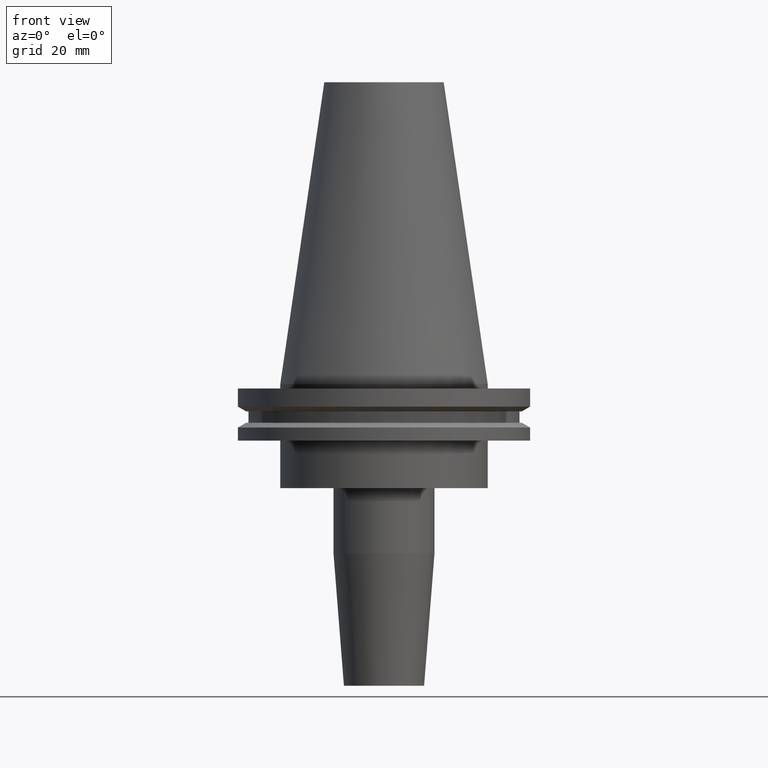
[diagram: clean part render]
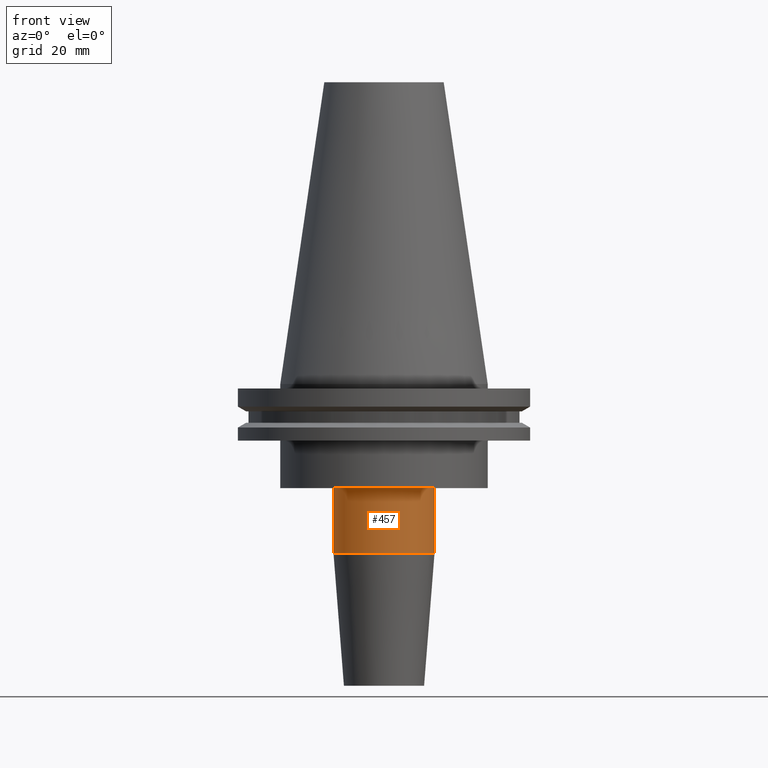
[diagram: same view with one face highlighted and labeled with its STEP entity id]
A machine part, front view. The second image highlights one B-rep face of the part: STEP entity #457.
In plain terms, the highlighted cylindrical surface (partial cylindrical patch) has radius 17 mm, axis along (-0, -0, 1).
Its self-contained STEP definition (entity closure, byte-faithful):
#61 = CARTESIAN_POINT ( 'NONE',  ( 0.000000000000000000, 0.000000000000000000, 0.000000000000000000 ) ) ;
#83 = VECTOR ( 'NONE', #133, 1000.000000000000000 ) ;
#101 = VERTEX_POINT ( 'NONE', #432 ) ;
#133 = DIRECTION ( 'NONE',  ( -0.000000000000000000, -0.000000000000000000, 1.000000000000000000 ) ) ;
#134 = VERTEX_POINT ( 'NONE', #218 ) ;
#217 = CARTESIAN_POINT ( 'NONE',  ( -17.00000000000000000, 2.081899558550500280E-15, -57.12828342338427490 ) ) ;
#218 = CARTESIAN_POINT ( 'NONE',  ( 17.00000000000000000, 0.000000000000000000, -35.04999999999999716 ) ) ;
#220 = AXIS2_PLACEMENT_3D ( 'NONE', #238, #846, #324 ) ;
#223 = EDGE_CURVE ( 'NONE', #101, #134, #305, .T. ) ;
#238 = CARTESIAN_POINT ( 'NONE',  ( 0.000000000000000000, 0.000000000000000000, -35.04999999999999716 ) ) ;
#244 = CARTESIAN_POINT ( 'NONE',  ( 17.00000000000000000, 0.000000000000000000, 0.000000000000000000 ) ) ;
#264 = LINE ( 'NONE', #592, #83 ) ;
#305 = CIRCLE ( 'NONE', #220, 17.00000000000000000 ) ;
#324 = DIRECTION ( 'NONE',  ( 1.000000000000000000, 0.000000000000000000, 0.000000000000000000 ) ) ;
#328 = EDGE_CURVE ( 'NONE', #330, #134, #625, .T. ) ;
#329 = DIRECTION ( 'NONE',  ( -0.000000000000000000, -0.000000000000000000, 1.000000000000000000 ) ) ;
#330 = VERTEX_POINT ( 'NONE', #508 ) ;
#335 = VECTOR ( 'NONE', #573, 1000.000000000000000 ) ;
#382 = CIRCLE ( 'NONE', #743, 17.00000000000000000 ) ;
#385 = ORIENTED_EDGE ( 'NONE', *, *, #425, .F. ) ;
#403 = DIRECTION ( 'NONE',  ( -0.000000000000000000, -0.000000000000000000, 1.000000000000000000 ) ) ;
#425 = EDGE_CURVE ( 'NONE', #555, #101, #264, .T. ) ;
#432 = CARTESIAN_POINT ( 'NONE',  ( -17.00000000000000000, 2.081899558550500280E-15, -35.04999999999999716 ) ) ;
#457 = ADVANCED_FACE ( 'NONE', ( #463 ), #803, .T. ) ;
#463 = FACE_OUTER_BOUND ( 'NONE', #667, .T. ) ;
#472 = DIRECTION ( 'NONE',  ( 1.000000000000000000, 0.000000000000000000, 0.000000000000000000 ) ) ;
#508 = CARTESIAN_POINT ( 'NONE',  ( 17.00000000000000000, 0.000000000000000000, -57.12828342338427490 ) ) ;
#537 = ORIENTED_EDGE ( 'NONE', *, *, #223, .F. ) ;
#555 = VERTEX_POINT ( 'NONE', #217 ) ;
#573 = DIRECTION ( 'NONE',  ( -0.000000000000000000, -0.000000000000000000, 1.000000000000000000 ) ) ;
#592 = CARTESIAN_POINT ( 'NONE',  ( -17.00000000000000000, 2.081899558550500280E-15, 0.000000000000000000 ) ) ;
#625 = LINE ( 'NONE', #244, #335 ) ;
#639 = ORIENTED_EDGE ( 'NONE', *, *, #328, .T. ) ;
#661 = DIRECTION ( 'NONE',  ( 1.000000000000000000, 0.000000000000000000, 0.000000000000000000 ) ) ;
#667 = EDGE_LOOP ( 'NONE', ( #385, #762, #639, #537 ) ) ;
#743 = AXIS2_PLACEMENT_3D ( 'NONE', #799, #403, #472 ) ;
#762 = ORIENTED_EDGE ( 'NONE', *, *, #827, .T. ) ;
#768 = AXIS2_PLACEMENT_3D ( 'NONE', #61, #329, #661 ) ;
#799 = CARTESIAN_POINT ( 'NONE',  ( 0.000000000000000000, 0.000000000000000000, -57.12828342338427490 ) ) ;
#803 = CYLINDRICAL_SURFACE ( 'NONE', #768, 17.00000000000000000 ) ;
#827 = EDGE_CURVE ( 'NONE', #555, #330, #382, .T. ) ;
#846 = DIRECTION ( 'NONE',  ( -0.000000000000000000, -0.000000000000000000, 1.000000000000000000 ) ) ;